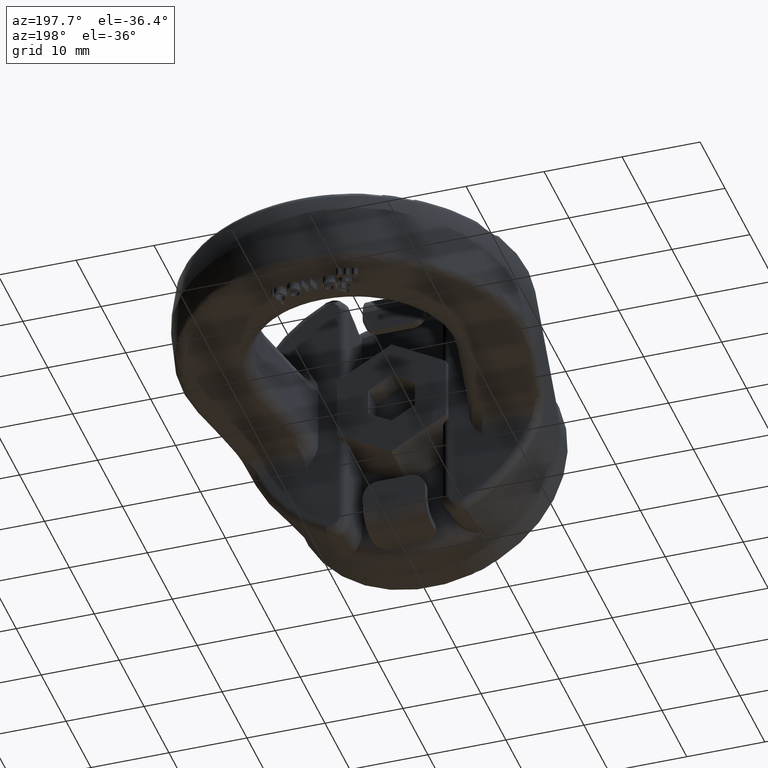
[diagram: clean part render]
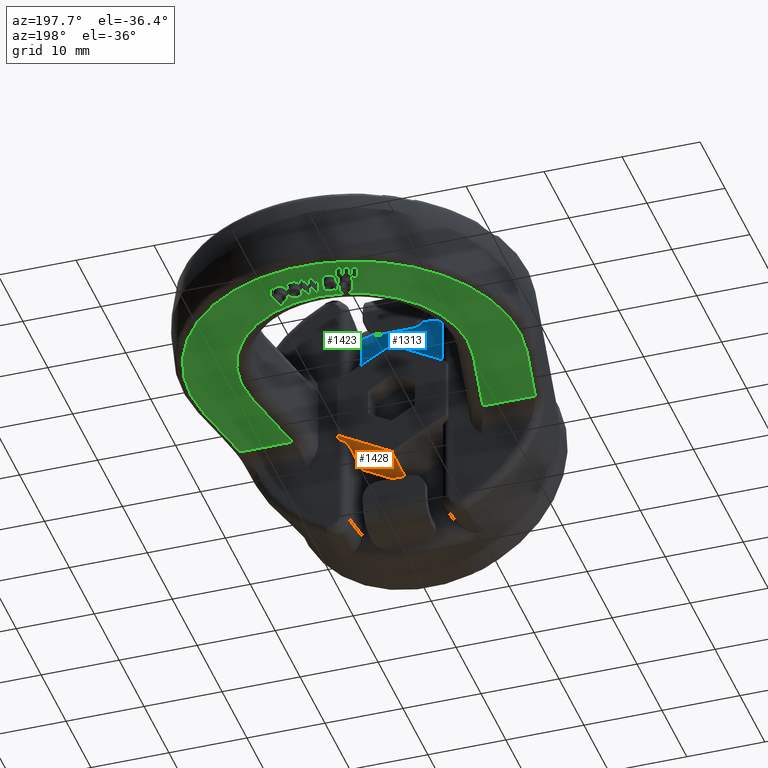
[diagram: same view with three faces highlighted in distinct colors, each labeled with its STEP entity id]
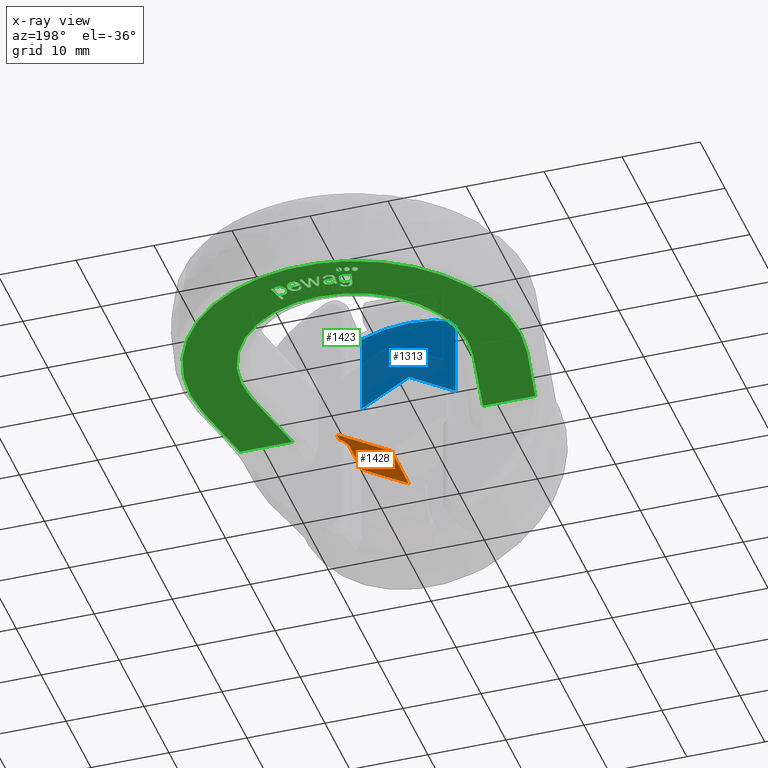
[diagram: x-ray of the same camera — body ghosted, the three highlighted faces saturated]
A machine part, auxiliary view with three faces highlighted in distinct colors.
The next image is the same camera in x-ray (body ghosted, the three faces saturated) — at least one of them is partly hidden behind the body in this view.
Their STEP definitions:

[orange] entity #1428 — the highlighted planar face has unit normal (-0.5, 0, 0.866).
#1053=ELLIPSE('',#5232,1.15470053837925,1.);
#1196=FACE_OUTER_BOUND('',#1959,.T.);
#1428=ADVANCED_FACE('',(#1196),#1610,.F.);
#1610=PLANE('',#5233);
#1959=EDGE_LOOP('',(#3333,#3334,#3335,#3336,#3337,#3338));
#2114=LINE('',#6504,#2390);
#2151=LINE('',#6894,#2427);
#2249=LINE('',#8370,#2553);
#2254=LINE('',#8401,#2558);
#2257=LINE('',#8416,#2561);
#2390=VECTOR('',#5400,1.);
#2427=VECTOR('',#5511,1.);
#2553=VECTOR('',#5817,1.);
#2558=VECTOR('',#5826,1.);
#2561=VECTOR('',#5835,1.);
#3333=ORIENTED_EDGE('',*,*,#4385,.F.);
#3334=ORIENTED_EDGE('',*,*,#4614,.T.);
#3335=ORIENTED_EDGE('',*,*,#4599,.F.);
#3336=ORIENTED_EDGE('',*,*,#4608,.F.);
#3337=ORIENTED_EDGE('',*,*,#4613,.T.);
#3338=ORIENTED_EDGE('',*,*,#4300,.T.);
#3915=VERTEX_POINT('',#6502);
#3917=VERTEX_POINT('',#6505);
#3950=VERTEX_POINT('',#6642);
#4120=VERTEX_POINT('',#8371);
#4121=VERTEX_POINT('',#8372);
#4128=VERTEX_POINT('',#8400);
#4300=EDGE_CURVE('',#3917,#3915,#2114,.T.);
#4385=EDGE_CURVE('',#3950,#3915,#2151,.T.);
#4599=EDGE_CURVE('',#4120,#4121,#2249,.T.);
#4608=EDGE_CURVE('',#4128,#4120,#2254,.T.);
#4613=EDGE_CURVE('',#4128,#3917,#2257,.T.);
#4614=EDGE_CURVE('',#3950,#4121,#1053,.T.);
#5232=AXIS2_PLACEMENT_3D('',#8418,#5838,#5839);
#5233=AXIS2_PLACEMENT_3D('',#8419,#5840,#5841);
#5400=DIRECTION('',(0.866025403784441,0.,0.499999999999995));
#5511=DIRECTION('',(0.,1.,0.));
#5817=DIRECTION('',(0.,1.,0.));
#5826=DIRECTION('',(0.866025403784441,-1.25192883228097E-16,0.499999999999995));
#5835=DIRECTION('',(0.,1.,0.));
#5838=DIRECTION('',(-0.499999999999995,0.,0.866025403784441));
#5839=DIRECTION('',(-0.866025403784441,0.,-0.499999999999995));
#5840=DIRECTION('',(-0.499999999999995,0.,0.866025403784441));
#5841=DIRECTION('',(0.866025403784441,0.,0.499999999999995));
#6502=CARTESIAN_POINT('',(7.00000000000001,16.,-4.04145188432737));
#6504=CARTESIAN_POINT('',(1.80493435426896E-14,16.,-8.0829037686547));
#6505=CARTESIAN_POINT('',(1.80701602244013E-14,16.,-8.0829037686547));
#6642=CARTESIAN_POINT('',(7.00000000000001,15.,-4.04145188432737));
#6894=CARTESIAN_POINT('',(7.00000000000001,1.70000000000001,-4.04145188432737));
#8370=CARTESIAN_POINT('',(6.00000000000001,15.,-4.61880215351699));
#8371=CARTESIAN_POINT('',(6.00000000000001,9.,-4.618802153517));
#8372=CARTESIAN_POINT('',(6.00000000000001,14.,-4.61880215351699));
#8400=CARTESIAN_POINT('',(1.80701602244013E-14,9.,-8.0829037686547));
#8401=CARTESIAN_POINT('',(-2.71706437183233,9.,-9.65160161513763));
#8416=CARTESIAN_POINT('',(1.80701602244013E-14,1.70000000000001,-8.0829037686547));
#8418=CARTESIAN_POINT('',(7.00000000000001,14.,-4.04145188432737));
#8419=CARTESIAN_POINT('',(1.80493435426896E-14,1.70000000000001,-8.0829037686547));

[blue] entity #1313 — the highlighted planar face has unit normal (-0, 1, 0).
#1093=FACE_OUTER_BOUND('',#1825,.T.);
#1313=ADVANCED_FACE('',(#1093),#1552,.T.);
#1552=PLANE('',#5105);
#1673=CIRCLE('',#5104,16.2518933962199);
#1825=EDGE_LOOP('',(#2775,#2776,#2777,#2778,#2779,#2780,#2781));
#2133=LINE('',#6609,#2409);
#2134=LINE('',#6623,#2410);
#2135=LINE('',#6625,#2411);
#2136=LINE('',#6627,#2412);
#2409=VECTOR('',#5427,1.);
#2410=VECTOR('',#5432,1.);
#2411=VECTOR('',#5433,1.);
#2412=VECTOR('',#5434,1.);
#2775=ORIENTED_EDGE('',*,*,#4326,.T.);
#2776=ORIENTED_EDGE('',*,*,#4327,.T.);
#2777=ORIENTED_EDGE('',*,*,#4328,.T.);
#2778=ORIENTED_EDGE('',*,*,#4329,.T.);
#2779=ORIENTED_EDGE('',*,*,#4330,.F.);
#2780=ORIENTED_EDGE('',*,*,#4331,.T.);
#2781=ORIENTED_EDGE('',*,*,#4332,.T.);
#3939=VERTEX_POINT('',#6597);
#3942=VERTEX_POINT('',#6608);
#3943=VERTEX_POINT('',#6615);
#3944=VERTEX_POINT('',#6617);
#3945=VERTEX_POINT('',#6622);
#3946=VERTEX_POINT('',#6624);
#3947=VERTEX_POINT('',#6626);
#4326=EDGE_CURVE('',#3939,#3942,#2133,.T.);
#4327=EDGE_CURVE('',#3942,#3943,#4856,.T.);
#4328=EDGE_CURVE('',#3943,#3944,#1673,.T.);
#4329=EDGE_CURVE('',#3944,#3945,#4857,.T.);
#4330=EDGE_CURVE('',#3946,#3945,#2134,.T.);
#4331=EDGE_CURVE('',#3946,#3947,#2135,.T.);
#4332=EDGE_CURVE('',#3947,#3939,#2136,.T.);
#4856=B_SPLINE_CURVE_WITH_KNOTS('',3,(#6611,#6612,#6613,#6614),
 .UNSPECIFIED.,.F.,.F.,(4,4),(0.,1.),.UNSPECIFIED.);
#4857=B_SPLINE_CURVE_WITH_KNOTS('',3,(#6618,#6619,#6620,#6621),
 .UNSPECIFIED.,.F.,.F.,(4,4),(0.,1.),.UNSPECIFIED.);
#5104=AXIS2_PLACEMENT_3D('',#6616,#5430,#5431);
#5105=AXIS2_PLACEMENT_3D('',#6628,#5435,#5436);
#5427=DIRECTION('',(0.,0.,1.));
#5430=DIRECTION('',(-1.44560289664734E-16,1.,0.));
#5431=DIRECTION('',(-1.,-1.06739776940716E-16,0.));
#5432=DIRECTION('',(0.,0.,1.));
#5433=DIRECTION('',(-0.866025403784443,-1.25192883228097E-16,0.499999999999993));
#5434=DIRECTION('',(-0.866025403784443,-1.25192883228097E-16,-0.499999999999993));
#5435=DIRECTION('',(-1.44560289664734E-16,1.,0.));
#5436=DIRECTION('',(-1.,-1.43982048506075E-16,0.));
#6597=CARTESIAN_POINT('',(-6.,9.,4.61880215351701));
#6608=CARTESIAN_POINT('',(-6.,9.,14.5989302787139));
#6609=CARTESIAN_POINT('',(-6.,9.,24.75));
#6611=CARTESIAN_POINT('',(-6.,9.,14.5989302787139));
#6612=CARTESIAN_POINT('',(-5.99999999999979,9.,14.7608213090874));
#6613=CARTESIAN_POINT('',(-6.01894561099704,9.,14.9237895497863));
#6614=CARTESIAN_POINT('',(-6.0561581598875,9.,15.0813456728678));
#6615=CARTESIAN_POINT('',(-6.0561581598875,9.,15.0813456728678));
#6616=CARTESIAN_POINT('',(-1.52752616624701E-13,9.,0.));
#6617=CARTESIAN_POINT('',(6.0561581598875,9.,15.0813456728676));
#6618=CARTESIAN_POINT('',(6.0561581598875,9.,15.0813456728676));
#6619=CARTESIAN_POINT('',(6.01894561099704,9.,14.9237895497861));
#6620=CARTESIAN_POINT('',(5.99999999999979,9.,14.7608213090873));
#6621=CARTESIAN_POINT('',(6.,9.,14.5989302787138));
#6622=CARTESIAN_POINT('',(6.,9.,14.5989302787138));
#6623=CARTESIAN_POINT('',(6.,9.,24.75));
#6624=CARTESIAN_POINT('',(6.,9.,4.61880215351701));
#6625=CARTESIAN_POINT('',(-11.7170643718324,9.,14.8477540378442));
#6626=CARTESIAN_POINT('',(8.67361737988404E-16,9.,8.0829037686547));
#6627=CARTESIAN_POINT('',(2.71706437183235,9.,9.65160161513762));
#6628=CARTESIAN_POINT('',(-6.,9.,24.75));

[green] entity #1423 — the highlighted planar face has unit normal (-0, -0, 1).
#1423=ADVANCED_FACE('',(#1789,#1790,#1791,#1792,#1793,#1794,#1795,#1796,
#1797),#1605,.F.);
#1605=PLANE('',#5225);
#1709=CIRCLE('',#5220,0.375);
#1710=CIRCLE('',#5221,0.375);
#1711=CIRCLE('',#5222,0.375);
#1712=CIRCLE('',#5223,14.5);
#1713=CIRCLE('',#5224,21.1246301742776);
#1789=FACE_BOUND('',#1946,.T.);
#1790=FACE_BOUND('',#1947,.T.);
#1791=FACE_BOUND('',#1948,.T.);
#1792=FACE_BOUND('',#1949,.T.);
#1793=FACE_BOUND('',#1950,.T.);
#1794=FACE_BOUND('',#1951,.T.);
#1795=FACE_BOUND('',#1952,.T.);
#1796=FACE_BOUND('',#1953,.T.);
#1797=FACE_BOUND('',#1954,.T.);
#1946=EDGE_LOOP('',(#3259,#3260,#3261,#3262,#3263,#3264,#3265));
#1947=EDGE_LOOP('',(#3266,#3267,#3268,#3269,#3270,#3271,#3272,#3273,#3274,
#3275,#3276,#3277,#3278,#3279,#3280));
#1948=EDGE_LOOP('',(#3281,#3282,#3283,#3284,#3285));
#1949=EDGE_LOOP('',(#3286));
#1950=EDGE_LOOP('',(#3287));
#1951=EDGE_LOOP('',(#3288));
#1952=EDGE_LOOP('',(#3289,#3290,#3291,#3292,#3293,#3294,#3295,#3296));
#1953=EDGE_LOOP('',(#3297,#3298,#3299,#3300,#3301,#3302));
#1954=EDGE_LOOP('',(#3303,#3304,#3305,#3306,#3307,#3308,#3309,#3310,#3311));
#2222=LINE('',#8111,#2526);
#2223=LINE('',#8143,#2527);
#2224=LINE('',#8145,#2528);
#2225=LINE('',#8146,#2529);
#2226=LINE('',#8149,#2530);
#2227=LINE('',#8151,#2531);
#2228=LINE('',#8153,#2532);
#2229=LINE('',#8167,#2533);
#2230=LINE('',#8169,#2534);
#2231=LINE('',#8185,#2535);
#2232=LINE('',#8187,#2536);
#2233=LINE('',#8189,#2537);
#2234=LINE('',#8191,#2538);
#2235=LINE('',#8193,#2539);
#2236=LINE('',#8209,#2540);
#2237=LINE('',#8232,#2541);
#2238=LINE('',#8242,#2542);
#2239=LINE('',#8244,#2543);
#2240=LINE('',#8258,#2544);
#2241=LINE('',#8260,#2545);
#2242=LINE('',#8261,#2546);
#2243=LINE('',#8264,#2547);
#2244=LINE('',#8266,#2548);
#2245=LINE('',#8268,#2549);
#2246=LINE('',#8270,#2550);
#2247=LINE('',#8294,#2551);
#2248=LINE('',#8339,#2552);
#2526=VECTOR('',#5778,1.);
#2527=VECTOR('',#5779,1.);
#2528=VECTOR('',#5780,1.);
#2529=VECTOR('',#5781,1.);
#2530=VECTOR('',#5782,1.);
#2531=VECTOR('',#5783,1.);
#2532=VECTOR('',#5784,1.);
#2533=VECTOR('',#5785,1.);
#2534=VECTOR('',#5786,1.);
#2535=VECTOR('',#5787,1.);
#2536=VECTOR('',#5788,1.);
#2537=VECTOR('',#5789,1.);
#2538=VECTOR('',#5790,1.);
#2539=VECTOR('',#5791,1.);
#2540=VECTOR('',#5792,1.);
#2541=VECTOR('',#5793,1.);
#2542=VECTOR('',#5802,1.);
#2543=VECTOR('',#5803,1.);
#2544=VECTOR('',#5806,1.);
#2545=VECTOR('',#5807,1.);
#2546=VECTOR('',#5808,1.);
#2547=VECTOR('',#5809,1.);
#2548=VECTOR('',#5810,1.);
#2549=VECTOR('',#5811,1.);
#2550=VECTOR('',#5812,1.);
#2551=VECTOR('',#5813,1.);
#2552=VECTOR('',#5814,1.);
#3259=ORIENTED_EDGE('',*,*,#4546,.T.);
#3260=ORIENTED_EDGE('',*,*,#4547,.T.);
#3261=ORIENTED_EDGE('',*,*,#4548,.T.);
#3262=ORIENTED_EDGE('',*,*,#4549,.T.);
#3263=ORIENTED_EDGE('',*,*,#4550,.T.);
#3264=ORIENTED_EDGE('',*,*,#4551,.T.);
#3265=ORIENTED_EDGE('',*,*,#4552,.T.);
#3266=ORIENTED_EDGE('',*,*,#4553,.T.);
#3267=ORIENTED_EDGE('',*,*,#4554,.T.);
#3268=ORIENTED_EDGE('',*,*,#4555,.T.);
#3269=ORIENTED_EDGE('',*,*,#4556,.T.);
#3270=ORIENTED_EDGE('',*,*,#4557,.T.);
#3271=ORIENTED_EDGE('',*,*,#4558,.T.);
#3272=ORIENTED_EDGE('',*,*,#4559,.T.);
#3273=ORIENTED_EDGE('',*,*,#4560,.T.);
#3274=ORIENTED_EDGE('',*,*,#4561,.T.);
#3275=ORIENTED_EDGE('',*,*,#4562,.T.);
#3276=ORIENTED_EDGE('',*,*,#4563,.T.);
#3277=ORIENTED_EDGE('',*,*,#4564,.T.);
#3278=ORIENTED_EDGE('',*,*,#4565,.T.);
#3279=ORIENTED_EDGE('',*,*,#4566,.T.);
#3280=ORIENTED_EDGE('',*,*,#4567,.T.);
#3281=ORIENTED_EDGE('',*,*,#4568,.T.);
#3282=ORIENTED_EDGE('',*,*,#4569,.T.);
#3283=ORIENTED_EDGE('',*,*,#4570,.T.);
#3284=ORIENTED_EDGE('',*,*,#4571,.T.);
#3285=ORIENTED_EDGE('',*,*,#4572,.T.);
#3286=ORIENTED_EDGE('',*,*,#4573,.F.);
#3287=ORIENTED_EDGE('',*,*,#4574,.F.);
#3288=ORIENTED_EDGE('',*,*,#4575,.F.);
#3289=ORIENTED_EDGE('',*,*,#4576,.T.);
#3290=ORIENTED_EDGE('',*,*,#4577,.T.);
#3291=ORIENTED_EDGE('',*,*,#4578,.T.);
#3292=ORIENTED_EDGE('',*,*,#4579,.T.);
#3293=ORIENTED_EDGE('',*,*,#4580,.T.);
#3294=ORIENTED_EDGE('',*,*,#4581,.T.);
#3295=ORIENTED_EDGE('',*,*,#4582,.T.);
#3296=ORIENTED_EDGE('',*,*,#4583,.T.);
#3297=ORIENTED_EDGE('',*,*,#4584,.T.);
#3298=ORIENTED_EDGE('',*,*,#4585,.T.);
#3299=ORIENTED_EDGE('',*,*,#4586,.T.);
#3300=ORIENTED_EDGE('',*,*,#4587,.T.);
#3301=ORIENTED_EDGE('',*,*,#4588,.T.);
#3302=ORIENTED_EDGE('',*,*,#4589,.T.);
#3303=ORIENTED_EDGE('',*,*,#4590,.T.);
#3304=ORIENTED_EDGE('',*,*,#4591,.T.);
#3305=ORIENTED_EDGE('',*,*,#4592,.T.);
#3306=ORIENTED_EDGE('',*,*,#4593,.T.);
#3307=ORIENTED_EDGE('',*,*,#4594,.T.);
#3308=ORIENTED_EDGE('',*,*,#4595,.T.);
#3309=ORIENTED_EDGE('',*,*,#4596,.T.);
#3310=ORIENTED_EDGE('',*,*,#4597,.T.);
#3311=ORIENTED_EDGE('',*,*,#4598,.T.);
#4067=VERTEX_POINT('',#8104);
#4068=VERTEX_POINT('',#8105);
#4069=VERTEX_POINT('',#8110);
#4070=VERTEX_POINT('',#8112);
#4071=VERTEX_POINT('',#8125);
#4072=VERTEX_POINT('',#8142);
#4073=VERTEX_POINT('',#8144);
#4074=VERTEX_POINT('',#8147);
#4075=VERTEX_POINT('',#8148);
#4076=VERTEX_POINT('',#8150);
#4077=VERTEX_POINT('',#8152);
#4078=VERTEX_POINT('',#8154);
#4079=VERTEX_POINT('',#8161);
#4080=VERTEX_POINT('',#8166);
#4081=VERTEX_POINT('',#8168);
#4082=VERTEX_POINT('',#8170);
#4083=VERTEX_POINT('',#8177);
#4084=VERTEX_POINT('',#8184);
#4085=VERTEX_POINT('',#8186);
#4086=VERTEX_POINT('',#8188);
#4087=VERTEX_POINT('',#8190);
#4088=VERTEX_POINT('',#8192);
#4089=VERTEX_POINT('',#8202);
#4090=VERTEX_POINT('',#8203);
#4091=VERTEX_POINT('',#8208);
#4092=VERTEX_POINT('',#8210);
#4093=VERTEX_POINT('',#8231);
#4094=VERTEX_POINT('',#8234);
#4095=VERTEX_POINT('',#8236);
#4096=VERTEX_POINT('',#8238);
#4097=VERTEX_POINT('',#8240);
#4098=VERTEX_POINT('',#8241);
#4099=VERTEX_POINT('',#8243);
#4100=VERTEX_POINT('',#8245);
#4101=VERTEX_POINT('',#8250);
#4102=VERTEX_POINT('',#8252);
#4103=VERTEX_POINT('',#8257);
#4104=VERTEX_POINT('',#8259);
#4105=VERTEX_POINT('',#8262);
#4106=VERTEX_POINT('',#8263);
#4107=VERTEX_POINT('',#8265);
#4108=VERTEX_POINT('',#8267);
#4109=VERTEX_POINT('',#8269);
#4110=VERTEX_POINT('',#8271);
#4111=VERTEX_POINT('',#8295);
#4112=VERTEX_POINT('',#8296);
#4113=VERTEX_POINT('',#8301);
#4114=VERTEX_POINT('',#8318);
#4115=VERTEX_POINT('',#8325);
#4116=VERTEX_POINT('',#8338);
#4117=VERTEX_POINT('',#8340);
#4118=VERTEX_POINT('',#8345);
#4119=VERTEX_POINT('',#8358);
#4546=EDGE_CURVE('',#4067,#4068,#4971,.T.);
#4547=EDGE_CURVE('',#4068,#4069,#4972,.T.);
#4548=EDGE_CURVE('',#4069,#4070,#2222,.T.);
#4549=EDGE_CURVE('',#4070,#4071,#4973,.T.);
#4550=EDGE_CURVE('',#4071,#4072,#4974,.T.);
#4551=EDGE_CURVE('',#4072,#4073,#2223,.T.);
#4552=EDGE_CURVE('',#4073,#4067,#2224,.T.);
#4553=EDGE_CURVE('',#4074,#4075,#2225,.T.);
#4554=EDGE_CURVE('',#4075,#4076,#2226,.T.);
#4555=EDGE_CURVE('',#4076,#4077,#2227,.T.);
#4556=EDGE_CURVE('',#4077,#4078,#2228,.T.);
#4557=EDGE_CURVE('',#4078,#4079,#4975,.T.);
#4558=EDGE_CURVE('',#4079,#4080,#4976,.T.);
#4559=EDGE_CURVE('',#4080,#4081,#2229,.T.);
#4560=EDGE_CURVE('',#4081,#4082,#2230,.T.);
#4561=EDGE_CURVE('',#4082,#4083,#4977,.T.);
#4562=EDGE_CURVE('',#4083,#4084,#4978,.T.);
#4563=EDGE_CURVE('',#4084,#4085,#2231,.T.);
#4564=EDGE_CURVE('',#4085,#4086,#2232,.T.);
#4565=EDGE_CURVE('',#4086,#4087,#2233,.T.);
#4566=EDGE_CURVE('',#4087,#4088,#2234,.T.);
#4567=EDGE_CURVE('',#4088,#4074,#2235,.T.);
#4568=EDGE_CURVE('',#4089,#4090,#4979,.T.);
#4569=EDGE_CURVE('',#4090,#4091,#4980,.T.);
#4570=EDGE_CURVE('',#4091,#4092,#2236,.T.);
#4571=EDGE_CURVE('',#4092,#4093,#4981,.T.);
#4572=EDGE_CURVE('',#4093,#4089,#2237,.T.);
#4573=EDGE_CURVE('',#4094,#4094,#1709,.T.);
#4574=EDGE_CURVE('',#4095,#4095,#1710,.T.);
#4575=EDGE_CURVE('',#4096,#4096,#1711,.T.);
#4576=EDGE_CURVE('',#4097,#4098,#1712,.T.);
#4577=EDGE_CURVE('',#4098,#4099,#2238,.T.);
#4578=EDGE_CURVE('',#4099,#4100,#2239,.T.);
#4579=EDGE_CURVE('',#4100,#4101,#4982,.T.);
#4580=EDGE_CURVE('',#4101,#4102,#1713,.T.);
#4581=EDGE_CURVE('',#4102,#4103,#4983,.T.);
#4582=EDGE_CURVE('',#4103,#4104,#2240,.T.);
#4583=EDGE_CURVE('',#4104,#4097,#2241,.T.);
#4584=EDGE_CURVE('',#4105,#4106,#2242,.T.);
#4585=EDGE_CURVE('',#4106,#4107,#2243,.T.);
#4586=EDGE_CURVE('',#4107,#4108,#2244,.T.);
#4587=EDGE_CURVE('',#4108,#4109,#2245,.T.);
#4588=EDGE_CURVE('',#4109,#4110,#2246,.T.);
#4589=EDGE_CURVE('',#4110,#4105,#4984,.T.);
#4590=EDGE_CURVE('',#4111,#4112,#2247,.T.);
#4591=EDGE_CURVE('',#4112,#4113,#4985,.T.);
#4592=EDGE_CURVE('',#4113,#4114,#4986,.T.);
#4593=EDGE_CURVE('',#4114,#4115,#4987,.T.);
#4594=EDGE_CURVE('',#4115,#4116,#4988,.T.);
#4595=EDGE_CURVE('',#4116,#4117,#2248,.T.);
#4596=EDGE_CURVE('',#4117,#4118,#4989,.T.);
#4597=EDGE_CURVE('',#4118,#4119,#4990,.T.);
#4598=EDGE_CURVE('',#4119,#4111,#4991,.T.);
#4971=B_SPLINE_CURVE_WITH_KNOTS('',3,(#8092,#8093,#8094,#8095,#8096,#8097,
#8098,#8099,#8100,#8101,#8102,#8103),.UNSPECIFIED.,.F.,.F.,(4,2,2,2,2,4),
(0.,0.305645754892085,0.470829306249207,0.636012857606331,0.802206343843953,
1.),.UNSPECIFIED.);
#4972=B_SPLINE_CURVE_WITH_KNOTS('',3,(#8106,#8107,#8108,#8109),
 .UNSPECIFIED.,.F.,.F.,(4,4),(0.,1.),.UNSPECIFIED.);
#4973=B_SPLINE_CURVE_WITH_KNOTS('',3,(#8113,#8114,#8115,#8116,#8117,#8118,
#8119,#8120,#8121,#8122,#8123,#8124),.UNSPECIFIED.,.F.,.F.,(4,2,2,2,2,4),
(0.,0.163304651309287,0.382303784248528,0.619375661168189,0.856447538087857,
1.),.UNSPECIFIED.);
#4974=B_SPLINE_CURVE_WITH_KNOTS('',3,(#8126,#8127,#8128,#8129,#8130,#8131,
#8132,#8133,#8134,#8135,#8136,#8137,#8138,#8139,#8140,#8141),
 .UNSPECIFIED.,.F.,.F.,(4,2,2,2,2,2,2,4),(0.,0.139503666745457,0.312880428291726,
0.486257189837989,0.605370995480464,0.723854105689081,0.842337215897699,
1.),.UNSPECIFIED.);
#4975=B_SPLINE_CURVE_WITH_KNOTS('',3,(#8155,#8156,#8157,#8158,#8159,#8160),
 .UNSPECIFIED.,.F.,.F.,(4,2,4),(0.,0.728909607654965,1.),.UNSPECIFIED.);
#4976=B_SPLINE_CURVE_WITH_KNOTS('',3,(#8162,#8163,#8164,#8165),
 .UNSPECIFIED.,.F.,.F.,(4,4),(0.,1.),.UNSPECIFIED.);
#4977=B_SPLINE_CURVE_WITH_KNOTS('',3,(#8171,#8172,#8173,#8174,#8175,#8176),
 .UNSPECIFIED.,.F.,.F.,(4,2,4),(0.,0.752082276025117,1.),.UNSPECIFIED.);
#4978=B_SPLINE_CURVE_WITH_KNOTS('',3,(#8178,#8179,#8180,#8181,#8182,#8183),
 .UNSPECIFIED.,.F.,.F.,(4,2,4),(0.,0.250451922487237,1.),.UNSPECIFIED.);
#4979=B_SPLINE_CURVE_WITH_KNOTS('',3,(#8194,#8195,#8196,#8197,#8198,#8199,
#8200,#8201),.UNSPECIFIED.,.F.,.F.,(4,2,2,4),(0.,0.363477968613222,0.728087675912446,
1.),.UNSPECIFIED.);
#4980=B_SPLINE_CURVE_WITH_KNOTS('',3,(#8204,#8205,#8206,#8207),
 .UNSPECIFIED.,.F.,.F.,(4,4),(0.,1.),.UNSPECIFIED.);
#4981=B_SPLINE_CURVE_WITH_KNOTS('',3,(#8211,#8212,#8213,#8214,#8215,#8216,
#8217,#8218,#8219,#8220,#8221,#8222,#8223,#8224,#8225,#8226,#8227,#8228,
#8229,#8230),.UNSPECIFIED.,.F.,.F.,(4,2,2,2,2,2,2,2,2,4),(0.,0.102921203122043,
0.206156274885329,0.336063021724235,0.465707475917734,0.599570296299741,
0.733433116681748,0.86284525505617,0.992257393430592,1.),.UNSPECIFIED.);
#4982=B_SPLINE_CURVE_WITH_KNOTS('',3,(#8246,#8247,#8248,#8249),
 .UNSPECIFIED.,.F.,.F.,(4,4),(0.,1.),.UNSPECIFIED.);
#4983=B_SPLINE_CURVE_WITH_KNOTS('',3,(#8253,#8254,#8255,#8256),
 .UNSPECIFIED.,.F.,.F.,(4,4),(0.,1.),.UNSPECIFIED.);
#4984=B_SPLINE_CURVE_WITH_KNOTS('',3,(#8272,#8273,#8274,#8275,#8276,#8277,
#8278,#8279,#8280,#8281,#8282,#8283,#8284,#8285,#8286,#8287,#8288,#8289,
#8290,#8291,#8292,#8293),.UNSPECIFIED.,.F.,.F.,(4,2,2,2,2,2,2,2,2,2,4),
(0.,0.0830854503763879,0.165678296755074,0.273272220956498,0.380460889370522,
0.487248686046683,0.601946689884046,0.7170552508492,0.831909514623426,0.915821305508706,
1.),.UNSPECIFIED.);
#4985=B_SPLINE_CURVE_WITH_KNOTS('',3,(#8297,#8298,#8299,#8300),
 .UNSPECIFIED.,.F.,.F.,(4,4),(0.,1.),.UNSPECIFIED.);
#4986=B_SPLINE_CURVE_WITH_KNOTS('',3,(#8302,#8303,#8304,#8305,#8306,#8307,
#8308,#8309,#8310,#8311,#8312,#8313,#8314,#8315,#8316,#8317),
 .UNSPECIFIED.,.F.,.F.,(4,2,2,2,2,2,2,4),(0.,0.121639465164567,0.243930904991197,
0.445161792748243,0.646392680505288,0.763565096161288,0.881519242448379,
1.),.UNSPECIFIED.);
#4987=B_SPLINE_CURVE_WITH_KNOTS('',3,(#8319,#8320,#8321,#8322,#8323,#8324),
 .UNSPECIFIED.,.F.,.F.,(4,2,4),(0.,0.3293446934494,1.),.UNSPECIFIED.);
#4988=B_SPLINE_CURVE_WITH_KNOTS('',3,(#8326,#8327,#8328,#8329,#8330,#8331,
#8332,#8333,#8334,#8335,#8336,#8337),.UNSPECIFIED.,.F.,.F.,(4,2,2,2,2,4),
(0.,0.0173977322142877,0.217983350684942,0.490675035316418,0.745337517658208,
1.),.UNSPECIFIED.);
#4989=B_SPLINE_CURVE_WITH_KNOTS('',3,(#8341,#8342,#8343,#8344),
 .UNSPECIFIED.,.F.,.F.,(4,4),(0.,1.),.UNSPECIFIED.);
#4990=B_SPLINE_CURVE_WITH_KNOTS('',3,(#8346,#8347,#8348,#8349,#8350,#8351,
#8352,#8353,#8354,#8355,#8356,#8357),.UNSPECIFIED.,.F.,.F.,(4,2,2,2,2,4),
(0.,0.20173029270749,0.402155128097317,0.60175516992587,0.800199545078051,
1.),.UNSPECIFIED.);
#4991=B_SPLINE_CURVE_WITH_KNOTS('',3,(#8359,#8360,#8361,#8362,#8363,#8364,
#8365,#8366,#8367,#8368),.UNSPECIFIED.,.F.,.F.,(4,2,2,2,4),(0.,0.161403604805123,
0.323059797411184,0.661780038481073,1.),.UNSPECIFIED.);
#5220=AXIS2_PLACEMENT_3D('',#8233,#5794,#5795);
#5221=AXIS2_PLACEMENT_3D('',#8235,#5796,#5797);
#5222=AXIS2_PLACEMENT_3D('',#8237,#5798,#5799);
#5223=AXIS2_PLACEMENT_3D('',#8239,#5800,#5801);
#5224=AXIS2_PLACEMENT_3D('',#8251,#5804,#5805);
#5225=AXIS2_PLACEMENT_3D('',#8369,#5815,#5816);
#5778=DIRECTION('',(-0.926036898244073,-0.377432991523656,-2.21054315143653E-15));
#5779=DIRECTION('',(-0.240441711768674,0.970663578816961,-4.58093910151045E-16));
#5780=DIRECTION('',(-0.970663578816962,-0.240441711768669,-2.30024685584558E-15));
#5781=DIRECTION('',(0.258675883018076,-0.965964175083537,5.0132445598242E-16));
#5782=DIRECTION('',(0.999999995678886,9.29635860585154E-5,2.34292079817326E-15));
#5783=DIRECTION('',(0.297319028478968,0.954778191678215,8.00109200774233E-16));
#5784=DIRECTION('',(-0.999999995678886,-9.29635860306668E-5,-2.34292079817326E-15));
#5785=DIRECTION('',(-0.26668775938768,0.963782983348834,-5.20332052371245E-16));
#5786=DIRECTION('',(-0.999999995678886,-9.29635860223379E-5,-2.34292079817326E-15));
#5787=DIRECTION('',(-0.999999995678886,-9.2963586044615E-5,-2.34292079817326E-15));
#5788=DIRECTION('',(0.303109223404764,-0.952955822001713,6.06838174374211E-16));
#5789=DIRECTION('',(0.999999995678886,9.29635860388954E-5,2.34292079817326E-15));
#5790=DIRECTION('',(0.260553429481473,0.965459429694197,7.15128746564999E-16));
#5791=DIRECTION('',(0.226101851815537,0.974103666251999,6.35348985620359E-16));
#5792=DIRECTION('',(-0.999955648987409,0.009418070830556,-2.34178570941629E-15));
#5793=DIRECTION('',(0.991600377783165,-0.129339440157614,2.3092081539516E-15));
#5794=DIRECTION('',(2.34291072916505E-15,1.0842021724855E-16,-1.));
#5795=DIRECTION('',(0.,1.,0.));
#5796=DIRECTION('',(2.34291072916505E-15,1.0842021724855E-16,-1.));
#5797=DIRECTION('',(0.,1.,0.));
#5798=DIRECTION('',(2.34291072916505E-15,1.0842021724855E-16,-1.));
#5799=DIRECTION('',(0.,1.,0.));
#5800=DIRECTION('',(-2.34291072916505E-15,-1.0842021724855E-16,1.));
#5801=DIRECTION('',(-2.12516407656523E-31,1.,1.19636101791504E-16));
#5802=DIRECTION('',(0.193894894562375,-0.981022308544839,3.47915776982408E-16));
#5803=DIRECTION('',(-1.,0.,-2.34291072916505E-15));
#5804=DIRECTION('',(2.34291072916505E-15,1.0842021724855E-16,-1.));
#5805=DIRECTION('',(-2.18807705905196E-31,1.,1.23177787847554E-16));
#5806=DIRECTION('',(-1.,0.,-2.34291072916505E-15));
#5807=DIRECTION('',(0.193894894562375,0.981022308544839,5.6064108061862E-16));
#5808=DIRECTION('',(-0.240261234879316,-0.97070826668689,-6.6815502616035E-16));
#5809=DIRECTION('',(0.970708266686899,-0.240261234879278,2.24823363762793E-15));
#5810=DIRECTION('',(0.24026123487932,0.970708266686889,6.6815502616036E-16));
#5811=DIRECTION('',(-0.970708266686884,0.240261234879342,-2.24823363762788E-15));
#5812=DIRECTION('',(-0.240261234879316,-0.97070826668689,-6.6815502616035E-16));
#5813=DIRECTION('',(0.991576312927651,0.129523803375304,2.33721778124492E-15));
#5814=DIRECTION('',(0.965560779386228,0.260177595713119,2.29043122113538E-15));
#5815=DIRECTION('',(-2.34291072916505E-15,-1.0842021724855E-16,1.));
#5816=DIRECTION('',(0.,1.,1.0842021724855E-16));
#8092=CARTESIAN_POINT('',(-5.17146461947346,48.2553131167821,-5.00000000000001));
#8093=CARTESIAN_POINT('',(-5.04598467779833,47.7487503895407,-5.00000000000001));
#8094=CARTESIAN_POINT('',(-4.9205047361232,47.2421876622993,-5.00000000000001));
#8095=CARTESIAN_POINT('',(-4.7272102671457,46.4618575787915,-5.00000000000001));
#8096=CARTESIAN_POINT('',(-4.6508081867054,46.275212812134,-5.00000000000001));
#8097=CARTESIAN_POINT('',(-4.48052137067233,46.0749268827251,-5.00000000000001));
#8098=CARTESIAN_POINT('',(-4.36837535363507,46.0065100948053,-5.00000000000001));
#8099=CARTESIAN_POINT('',(-4.08984432270127,45.935395287186,-5.00000000000001));
#8100=CARTESIAN_POINT('',(-3.93016062806058,45.9397978599713,-5.00000000000001));
#8101=CARTESIAN_POINT('',(-3.53727148507616,46.0371198777497,-5.00000000000001));
#8102=CARTESIAN_POINT('',(-3.37651664458398,46.1270150303619,-5.00000000000001));
#8103=CARTESIAN_POINT('',(-3.26850620850113,46.2539197375009,-5.00000000000001));
#8104=CARTESIAN_POINT('',(-5.17146461947346,48.2553131167821,-5.00000000000001));
#8105=CARTESIAN_POINT('',(-3.26850620850113,46.2539197375009,-5.00000000000001));
#8106=CARTESIAN_POINT('',(-3.26850620850113,46.2539197375009,-5.00000000000001));
#8107=CARTESIAN_POINT('',(-3.16049577241828,46.3808244446398,-5.00000000000001));
#8108=CARTESIAN_POINT('',(-3.13254466172379,46.538631444501,-5.00000000000001));
#8109=CARTESIAN_POINT('',(-3.18386744740864,46.7268764156949,-5.00000000000001));
#8110=CARTESIAN_POINT('',(-3.18386744740864,46.7268764156949,-5.00000000000001));
#8111=CARTESIAN_POINT('',(-33.3553237789344,34.4296309782548,-5.00000000000008));
#8112=CARTESIAN_POINT('',(-3.46823969568772,46.6109723209684,-5.00000000000001));
#8113=CARTESIAN_POINT('',(-3.46823969568772,46.6109723209684,-5.00000000000001));
#8114=CARTESIAN_POINT('',(-3.45809761341216,46.5186060394501,-5.00000000000001));
#8115=CARTESIAN_POINT('',(-3.47606064420637,46.4449741571848,-5.00000000000001));
#8116=CARTESIAN_POINT('',(-3.58390831168738,46.3164565960924,-5.00000000000001));
#8117=CARTESIAN_POINT('',(-3.6798033767143,46.2633884287734,-5.00000000000001));
#8118=CARTESIAN_POINT('',(-3.95078318755081,46.1962644004343,-5.00000000000001));
#8119=CARTESIAN_POINT('',(-4.0655621944294,46.1968233257196,-5.00000000000001));
#8120=CARTESIAN_POINT('',(-4.24579445056458,46.2694586919767,-5.00000000000001));
#8121=CARTESIAN_POINT('',(-4.31681193015408,46.3342269151133,-5.00000000000001));
#8122=CARTESIAN_POINT('',(-4.3989077806629,46.483146299924,-5.00000000000001));
#8123=CARTESIAN_POINT('',(-4.4379102061861,46.6092907647548,-5.00000000000001));
#8124=CARTESIAN_POINT('',(-4.48477829624114,46.8039102335949,-5.00000000000001));
#8125=CARTESIAN_POINT('',(-4.48477829624114,46.8039102335949,-5.00000000000001));
#8126=CARTESIAN_POINT('',(-4.48477829624114,46.8039102335949,-5.00000000000001));
#8127=CARTESIAN_POINT('',(-4.31399477568591,46.6828128108937,-5.00000000000001));
#8128=CARTESIAN_POINT('',(-4.13021867681516,46.6472936247769,-5.00000000000001));
#8129=CARTESIAN_POINT('',(-3.68679716817359,46.7571329438774,-5.00000000000001));
#8130=CARTESIAN_POINT('',(-3.51756590918364,46.8912960281985,-5.00000000000001));
#8131=CARTESIAN_POINT('',(-3.33490229639925,47.3068333203724,-5.00000000000001));
#8132=CARTESIAN_POINT('',(-3.31913724304912,47.53278065094,-5.00000000000001));
#8133=CARTESIAN_POINT('',(-3.42108969566016,47.9443628668237,-5.00000000000001));
#8134=CARTESIAN_POINT('',(-3.49033060476869,48.0912721460913,-5.00000000000001));
#8135=CARTESIAN_POINT('',(-3.68404937146539,48.3442539699589,-5.00000000000001));
#8136=CARTESIAN_POINT('',(-3.80069118899902,48.432122388134,-5.00000000000001));
#8137=CARTESIAN_POINT('',(-4.07380275001,48.5278722756582,-5.00000000000001));
#8138=CARTESIAN_POINT('',(-4.22119123604038,48.5328722518796,-5.00000000000001));
#8139=CARTESIAN_POINT('',(-4.59070915990836,48.4413394859625,-5.00000000000001));
#8140=CARTESIAN_POINT('',(-4.74365461768065,48.3145049291172,-5.00000000000001));
#8141=CARTESIAN_POINT('',(-4.83905078673898,48.1123182945235,-5.00000000000001));
#8142=CARTESIAN_POINT('',(-4.83905078673898,48.1123182945235,-5.00000000000001));
#8143=CARTESIAN_POINT('',(-10.6354507309872,71.5123942328926,-5.00000000000002));
#8144=CARTESIAN_POINT('',(-4.89164164464694,48.3246276728526,-5.00000000000001));
#8145=CARTESIAN_POINT('',(-39.2561909136599,39.8122334399602,-5.0000000000001));
#8146=CARTESIAN_POINT('',(-6.61179773777554,73.2799900594643,-5.00000000000002));
#8147=CARTESIAN_POINT('',(0.00808229076548879,48.5596068667461,-5.));
#8148=CARTESIAN_POINT('',(0.38108872589425,47.1667021660599,-5.));
#8149=CARTESIAN_POINT('',(-44.9985276876668,47.1624835141659,-5.00000000000011));
#8150=CARTESIAN_POINT('',(0.707112021160167,47.1667324743547,-5.));
#8151=CARTESIAN_POINT('',(1.16131571515607,48.625313123651,-5.));
#8152=CARTESIAN_POINT('',(1.27113964704365,48.9779898279542,-5.));
#8153=CARTESIAN_POINT('',(-44.9986960637709,48.9736884180829,-5.00000000000011));
#8154=CARTESIAN_POINT('',(0.948370077279399,48.9779598221374,-5.));
#8155=CARTESIAN_POINT('',(0.948370077279399,48.9779598221374,-5.));
#8156=CARTESIAN_POINT('',(0.850573800083456,48.6293961115894,-5.));
#8157=CARTESIAN_POINT('',(0.752777522887513,48.2808324010413,-5.));
#8158=CARTESIAN_POINT('',(0.618609614865871,47.8026335861438,-5.));
#8159=CARTESIAN_POINT('',(0.582121893482495,47.6730310812808,-5.));
#8160=CARTESIAN_POINT('',(0.545692217377958,47.5434122766746,-5.));
#8161=CARTESIAN_POINT('',(0.545692217377958,47.5434122766746,-5.));
#8162=CARTESIAN_POINT('',(0.545692217377958,47.5434122766746,-5.));
#8163=CARTESIAN_POINT('',(0.541135218030474,47.5625983458316,-5.));
#8164=CARTESIAN_POINT('',(0.509237114420671,47.6873075836178,-5.));
#8165=CARTESIAN_POINT('',(0.45064871110372,47.9169005007744,-5.));
#8166=CARTESIAN_POINT('',(0.45064871110372,47.9169005007744,-5.));
#8167=CARTESIAN_POINT('',(-6.65870459154003,73.6093947923569,-5.00000000000002));
#8168=CARTESIAN_POINT('',(0.157064035276714,48.9778862594898,-5.));
#8169=CARTESIAN_POINT('',(-44.998696063771,48.9736884180833,-5.00000000000011));
#8170=CARTESIAN_POINT('',(-0.163753299186545,48.9778564351598,-5.));
#8171=CARTESIAN_POINT('',(-0.163753299186545,48.9778564351598,-5.));
#8172=CARTESIAN_POINT('',(-0.25569271193327,48.6275878030609,-5.));
#8173=CARTESIAN_POINT('',(-0.347632124679996,48.277319170962,-5.));
#8174=CARTESIAN_POINT('',(-0.469878607116254,47.811587371045,-5.));
#8175=CARTESIAN_POINT('',(-0.501153963546192,47.696380533929,-5.));
#8176=CARTESIAN_POINT('',(-0.531945176605927,47.5810455314619,-5.));
#8177=CARTESIAN_POINT('',(-0.531945176605927,47.5810455314619,-5.));
#8178=CARTESIAN_POINT('',(-0.531945176605927,47.5810455314619,-5.));
#8179=CARTESIAN_POINT('',(-0.56709625262276,47.6976535032168,-5.));
#8180=CARTESIAN_POINT('',(-0.602247328639593,47.8142614749716,-5.));
#8181=CARTESIAN_POINT('',(-0.742597922349346,48.2798517191862,-5.));
#8182=CARTESIAN_POINT('',(-0.847870872144299,48.6288118515748,-5.));
#8183=CARTESIAN_POINT('',(-0.953107105888236,48.977783053999,-5.));
#8184=CARTESIAN_POINT('',(-0.953107105888236,48.977783053999,-5.));
#8185=CARTESIAN_POINT('',(-44.9986960637707,48.9736884180823,-5.00000000000011));
#8186=CARTESIAN_POINT('',(-1.25700506774289,48.9777548025545,-5.));
#8187=CARTESIAN_POINT('',(-9.32622283981266,74.3468543255508,-5.00000000000002));
#8188=CARTESIAN_POINT('',(-0.680927277846186,47.1666034372434,-5.));
#8189=CARTESIAN_POINT('',(-44.9985276876671,47.1624835141669,-5.00000000000011));
#8190=CARTESIAN_POINT('',(-0.35620547278094,47.166633624547,-5.));
#8191=CARTESIAN_POINT('',(0.595955534831762,50.6947883881064,-5.));
#8192=CARTESIAN_POINT('',(-0.063471013038612,48.2513372307022,-5.));
#8193=CARTESIAN_POINT('',(0.887625083074874,52.3488985144459,-5.));
#8194=CARTESIAN_POINT('',(2.79335506430457,47.7774374698736,-4.99999999999999));
#8195=CARTESIAN_POINT('',(2.75601442934387,47.5817231862315,-4.99999999999999));
#8196=CARTESIAN_POINT('',(2.67954274562389,47.4381955710878,-4.99999999999999));
#8197=CARTESIAN_POINT('',(2.44797733564573,47.255229275187,-4.99999999999999));
#8198=CARTESIAN_POINT('',(2.31370634319804,47.2195419894557,-4.99999999999999));
#8199=CARTESIAN_POINT('',(2.04785135806974,47.2542187964739,-4.99999999999999));
#8200=CARTESIAN_POINT('',(1.95486456889805,47.2960160254815,-5.));
#8201=CARTESIAN_POINT('',(1.8818148313252,47.3648812572146,-5.));
#8202=CARTESIAN_POINT('',(2.79335506430457,47.7774374698736,-4.99999999999999));
#8203=CARTESIAN_POINT('',(1.8818148313252,47.3648812572146,-5.));
#8204=CARTESIAN_POINT('',(1.8818148313252,47.3648812572146,-5.));
#8205=CARTESIAN_POINT('',(1.80949309184998,47.434296499721,-5.));
#8206=CARTESIAN_POINT('',(1.75777015603375,47.535853167198,-5.));
#8207=CARTESIAN_POINT('',(1.72745674098167,47.6707354481993,-5.));
#8208=CARTESIAN_POINT('',(1.72745674098167,47.6707354481993,-5.));
#8209=CARTESIAN_POINT('',(-45.1402209681494,48.1121581340707,-5.00000000000011));
#8210=CARTESIAN_POINT('',(1.40235245282482,47.6737974392149,-5.));
#8211=CARTESIAN_POINT('',(1.40235245282482,47.6737974392149,-5.));
#8212=CARTESIAN_POINT('',(1.42934098876341,47.4832366892553,-5.));
#8213=CARTESIAN_POINT('',(1.5042946801385,47.3283424725527,-5.));
#8214=CARTESIAN_POINT('',(1.75050722724439,47.0895235087558,-5.));
#8215=CARTESIAN_POINT('',(1.91838548658192,47.0163436242265,-5.));
#8216=CARTESIAN_POINT('',(2.39782785053903,46.9538075377834,-4.99999999999999));
#8217=CARTESIAN_POINT('',(2.61998470605247,47.0067413375197,-4.99999999999999));
#8218=CARTESIAN_POINT('',(2.9755831213652,47.2902486938071,-4.99999999999999));
#8219=CARTESIAN_POINT('',(3.08346921228063,47.5061182776543,-4.99999999999999));
#8220=CARTESIAN_POINT('',(3.16097692232648,48.1003428580986,-4.99999999999999));
#8221=CARTESIAN_POINT('',(3.1122136270243,48.3453411788305,-4.99999999999999));
#8222=CARTESIAN_POINT('',(2.83953707082215,48.7201605250282,-4.99999999999999));
#8223=CARTESIAN_POINT('',(2.64461195006734,48.8307212674074,-4.99999999999999));
#8224=CARTESIAN_POINT('',(2.14839232976718,48.895445696041,-4.99999999999999));
#8225=CARTESIAN_POINT('',(1.93768505986081,48.8397285346116,-5.));
#8226=CARTESIAN_POINT('',(1.58526808872443,48.5528929633262,-5.));
#8227=CARTESIAN_POINT('',(1.47789031718827,48.3334206476195,-5.));
#8228=CARTESIAN_POINT('',(1.43686168945856,48.0188684684302,-5.));
#8229=CARTESIAN_POINT('',(1.43395005122534,47.991514656856,-5.));
#8230=CARTESIAN_POINT('',(1.43052562597695,47.9551981893458,-5.));
#8231=CARTESIAN_POINT('',(1.43052562597695,47.9551981893458,-5.));
#8232=CARTESIAN_POINT('',(-46.1528196281871,54.1617339812733,-5.00000000000011));
#8233=CARTESIAN_POINT('',(-3.98915464365271,49.5876044916334,-5.00000000000001));
#8234=CARTESIAN_POINT('',(-3.98915464365271,49.9626044916334,-5.00000000000001));
#8235=CARTESIAN_POINT('',(-4.93825013449447,49.3643495941197,-5.00000000000001));
#8236=CARTESIAN_POINT('',(-4.93825013449447,49.7393495941197,-5.00000000000001));
#8237=CARTESIAN_POINT('',(-5.87499999999999,49.0939338226208,-5.00000000000002));
#8238=CARTESIAN_POINT('',(-5.87499999999999,49.4689338226208,-5.00000000000002));
#8239=CARTESIAN_POINT('',(1.17145536458252E-14,30.5,-5.));
#8240=CARTESIAN_POINT('',(14.2248234739002,27.6885240288456,-4.99999999999997));
#8241=CARTESIAN_POINT('',(-14.2248234739002,27.6885240288456,-5.00000000000004));
#8242=CARTESIAN_POINT('',(-12.1344599472687,17.1122102108752,-5.00000000000003));
#8243=CARTESIAN_POINT('',(-12.2111049528101,17.5,-5.00000000000003));
#8244=CARTESIAN_POINT('',(-45.,17.5,-5.00000000000011));
#8245=CARTESIAN_POINT('',(-18.9284913075253,17.5,-5.00000000000005));
#8246=CARTESIAN_POINT('',(-18.9284913075253,17.5,-5.00000000000005));
#8247=CARTESIAN_POINT('',(-19.523117995464,20.443540941851,-5.00000000000005));
#8248=CARTESIAN_POINT('',(-20.1166024552258,23.387312755873,-5.00000000000005));
#8249=CARTESIAN_POINT('',(-20.709215457593,26.3312597669089,-5.00000000000005));
#8250=CARTESIAN_POINT('',(-20.709215457593,26.3312597669089,-5.00000000000005));
#8251=CARTESIAN_POINT('',(1.17145536458253E-14,30.5,-5.));
#8252=CARTESIAN_POINT('',(20.709215457593,26.3312597669091,-4.99999999999996));
#8253=CARTESIAN_POINT('',(20.709215457593,26.3312597669091,-4.99999999999996));
#8254=CARTESIAN_POINT('',(20.1166024552258,23.3873127558731,-4.99999999999996));
#8255=CARTESIAN_POINT('',(19.5231179954642,20.443540941851,-4.99999999999996));
#8256=CARTESIAN_POINT('',(18.9284913075255,17.5,-4.99999999999996));
#8257=CARTESIAN_POINT('',(18.9284913075255,17.5,-4.99999999999996));
#8258=CARTESIAN_POINT('',(-45.,17.5,-5.00000000000011));
#8259=CARTESIAN_POINT('',(12.2111049528102,17.5,-4.99999999999998));
#8260=CARTESIAN_POINT('',(14.2248234739002,27.6885240288456,-4.99999999999997));
#8261=CARTESIAN_POINT('',(5.41071753593869,50.5227793334083,-4.99999999999999));
#8262=CARTESIAN_POINT('',(4.47797336315738,46.7542875928342,-4.99999999999999));
#8263=CARTESIAN_POINT('',(4.26623124134636,45.8988028195581,-4.99999999999999));
#8264=CARTESIAN_POINT('',(-46.1444862945926,58.3760234861477,-5.00000000000011));
#8265=CARTESIAN_POINT('',(4.56943939388733,45.8237553849631,-4.99999999999999));
#8266=CARTESIAN_POINT('',(5.71392568847963,50.4477318988132,-4.99999999999999));
#8267=CARTESIAN_POINT('',(5.17132175320065,48.2554925815688,-4.99999999999999));
#8268=CARTESIAN_POINT('',(-45.5426039352787,60.8077606827567,-5.00000000000011));
#8269=CARTESIAN_POINT('',(4.89527599765814,48.3238170168146,-4.99999999999999));
#8270=CARTESIAN_POINT('',(5.43787993293716,50.5160563340592,-4.99999999999999));
#8271=CARTESIAN_POINT('',(4.83872948036753,48.0953566419484,-4.99999999999999));
#8272=CARTESIAN_POINT('',(4.83872948036753,48.0953566419484,-4.99999999999999));
#8273=CARTESIAN_POINT('',(4.79579296237169,48.200858108613,-4.99999999999999));
#8274=CARTESIAN_POINT('',(4.7384811487425,48.2861990742889,-4.99999999999999));
#8275=CARTESIAN_POINT('',(4.59679157689602,48.4158617855785,-4.99999999999999));
#8276=CARTESIAN_POINT('',(4.50272768881033,48.4631434555821,-4.99999999999999));
#8277=CARTESIAN_POINT('',(4.23363045343022,48.5297480537852,-4.99999999999999));
#8278=CARTESIAN_POINT('',(4.08876963418331,48.5240952788376,-4.99999999999999));
#8279=CARTESIAN_POINT('',(3.81745117640939,48.4281629234154,-4.99999999999999));
#8280=CARTESIAN_POINT('',(3.70209123366396,48.3404507451878,-4.99999999999999));
#8281=CARTESIAN_POINT('',(3.51392603065204,48.0884658307994,-4.99999999999999));
#8282=CARTESIAN_POINT('',(3.44514526390558,47.9415360694902,-4.99999999999999));
#8283=CARTESIAN_POINT('',(3.35909621585466,47.5938789773026,-4.99999999999999));
#8284=CARTESIAN_POINT('',(3.35183876296096,47.4237158009459,-4.99999999999999));
#8285=CARTESIAN_POINT('',(3.41234659702628,47.103806616423,-4.99999999999999));
#8286=CARTESIAN_POINT('',(3.48074944915126,46.969487017692,-4.99999999999999));
#8287=CARTESIAN_POINT('',(3.69255452142338,46.7538489142572,-4.99999999999999));
#8288=CARTESIAN_POINT('',(3.8148057389896,46.6832201122207,-4.99999999999999));
#8289=CARTESIAN_POINT('',(4.05421384276674,46.6239639086551,-4.99999999999999));
#8290=CARTESIAN_POINT('',(4.15040069501784,46.6225574303023,-4.99999999999999));
#8291=CARTESIAN_POINT('',(4.33172656983859,46.6661033498071,-4.99999999999999));
#8292=CARTESIAN_POINT('',(4.41034842528417,46.7031641239311,-4.99999999999999));
#8293=CARTESIAN_POINT('',(4.47797336315738,46.7542875928342,-4.99999999999999));
#8294=CARTESIAN_POINT('',(-42.2297274523332,41.7920322980274,-5.0000000000001));
#8295=CARTESIAN_POINT('',(-2.98886145898923,46.9178366813451,-5.00000000000001));
#8296=CARTESIAN_POINT('',(-2.66558448054402,46.9600644587194,-5.00000000000001));
#8297=CARTESIAN_POINT('',(-2.66558448054402,46.9600644587194,-5.00000000000001));
#8298=CARTESIAN_POINT('',(-2.6415221638226,47.0270608843639,-5.00000000000001));
#8299=CARTESIAN_POINT('',(-2.63056565334719,47.1039550673733,-5.00000000000001));
#8300=CARTESIAN_POINT('',(-2.63254927528386,47.1894786829679,-5.00000000000001));
#8301=CARTESIAN_POINT('',(-2.63254927528386,47.1894786829679,-5.00000000000001));
#8302=CARTESIAN_POINT('',(-2.63254927528386,47.1894786829679,-5.00000000000001));
#8303=CARTESIAN_POINT('',(-2.50518401027589,47.1087232446653,-5.00000000000001));
#8304=CARTESIAN_POINT('',(-2.38598041362484,47.0552809426551,-5.00000000000001));
#8305=CARTESIAN_POINT('',(-2.16346750188182,47.0041542854792,-5.00000000000001));
#8306=CARTESIAN_POINT('',(-2.04728265932906,46.9995506975101,-5.00000000000001));
#8307=CARTESIAN_POINT('',(-1.72465094431388,47.0416941879036,-5.00000000000001));
#8308=CARTESIAN_POINT('',(-1.5767285902264,47.1100351179479,-5.));
#8309=CARTESIAN_POINT('',(-1.38639302735533,47.3309723360759,-5.));
#8310=CARTESIAN_POINT('',(-1.34826126112509,47.4610799461126,-5.));
#8311=CARTESIAN_POINT('',(-1.37932510498908,47.6988908423443,-5.));
#8312=CARTESIAN_POINT('',(-1.41049382320533,47.7767322824829,-5.));
#8313=CARTESIAN_POINT('',(-1.51101804763498,47.9111480429502,-5.));
#8314=CARTESIAN_POINT('',(-1.57194453042925,47.9626824306727,-5.));
#8315=CARTESIAN_POINT('',(-1.71532912508573,48.0331592694097,-5.00000000000001));
#8316=CARTESIAN_POINT('',(-1.79360541575033,48.0569199002824,-5.00000000000001));
#8317=CARTESIAN_POINT('',(-1.87918126380516,48.0689610127799,-5.00000000000001));
#8318=CARTESIAN_POINT('',(-1.87918126380516,48.0689610127799,-5.));
#8319=CARTESIAN_POINT('',(-1.87918126380516,48.0689610127799,-5.));
#8320=CARTESIAN_POINT('',(-1.94255221258231,48.0768078093539,-5.));
#8321=CARTESIAN_POINT('',(-2.03616770565392,48.080058955441,-5.00000000000001));
#8322=CARTESIAN_POINT('',(-2.41420719823563,48.0757206697207,-5.00000000000001));
#8323=CARTESIAN_POINT('',(-2.60330182347448,48.0859554273758,-5.00000000000001));
#8324=CARTESIAN_POINT('',(-2.72668659385615,48.1111173028486,-5.00000000000001));
#8325=CARTESIAN_POINT('',(-2.72668659385615,48.1111173028486,-5.00000000000001));
#8326=CARTESIAN_POINT('',(-2.72668659385615,48.1111173028486,-5.00000000000001));
#8327=CARTESIAN_POINT('',(-2.73344435723628,48.1528034466238,-5.00000000000001));
#8328=CARTESIAN_POINT('',(-2.73756877117907,48.179353980021,-5.00000000000001));
#8329=CARTESIAN_POINT('',(-2.75521303449383,48.3144305690806,-5.00000000000001));
#8330=CARTESIAN_POINT('',(-2.73696241125438,48.4058221800101,-5.00000000000001));
#8331=CARTESIAN_POINT('',(-2.61557493687452,48.5434241367597,-5.00000000000001));
#8332=CARTESIAN_POINT('',(-2.50212989029928,48.5925828357891,-5.00000000000001));
#8333=CARTESIAN_POINT('',(-2.20014660504508,48.6320291427974,-5.00000000000001));
#8334=CARTESIAN_POINT('',(-2.08980223589818,48.6212884483999,-5.00000000000001));
#8335=CARTESIAN_POINT('',(-1.93733710213026,48.5392967786376,-5.));
#8336=CARTESIAN_POINT('',(-1.87476412278197,48.4571727155266,-5.));
#8337=CARTESIAN_POINT('',(-1.82456020410929,48.3340889981474,-5.));
#8338=CARTESIAN_POINT('',(-1.82456020410929,48.3340889981474,-5.00000000000001));
#8339=CARTESIAN_POINT('',(-38.3930213647226,38.4804427991532,-5.00000000000009));
#8340=CARTESIAN_POINT('',(-1.52723321811118,48.4142059850933,-5.));
#8341=CARTESIAN_POINT('',(-1.52723321811118,48.4142059850933,-5.));
#8342=CARTESIAN_POINT('',(-1.57162976591358,48.5380482852997,-5.));
#8343=CARTESIAN_POINT('',(-1.63021778656495,48.6348825038167,-5.));
#8344=CARTESIAN_POINT('',(-1.70364254349532,48.7046243536635,-5.));
#8345=CARTESIAN_POINT('',(-1.70364254349532,48.7046243536635,-5.));
#8346=CARTESIAN_POINT('',(-1.70364254349532,48.7046243536635,-5.));
#8347=CARTESIAN_POINT('',(-1.77650487391263,48.7750846528812,-5.));
#8348=CARTESIAN_POINT('',(-1.87600178808915,48.8233613286548,-5.));
#8349=CARTESIAN_POINT('',(-2.12504098458967,48.8769788552898,-5.00000000000001));
#8350=CARTESIAN_POINT('',(-2.26666939636098,48.880042850997,-5.00000000000001));
#8351=CARTESIAN_POINT('',(-2.5796221599257,48.8391636653154,-5.00000000000001));
#8352=CARTESIAN_POINT('',(-2.7036915216195,48.8042527077725,-5.00000000000001));
#8353=CARTESIAN_POINT('',(-2.88986765925829,48.7066184207498,-5.00000000000001));
#8354=CARTESIAN_POINT('',(-2.9555057520125,48.6520378555858,-5.00000000000001));
#8355=CARTESIAN_POINT('',(-3.03314959759416,48.5305795907339,-5.00000000000001));
#8356=CARTESIAN_POINT('',(-3.05611915690957,48.4576551236984,-5.00000000000001));
#8357=CARTESIAN_POINT('',(-3.0632520599103,48.3715856527628,-5.00000000000001));
#8358=CARTESIAN_POINT('',(-3.0632520599103,48.3715856527628,-5.00000000000001));
#8359=CARTESIAN_POINT('',(-3.0632520599103,48.3715856527628,-5.00000000000001));
#8360=CARTESIAN_POINT('',(-3.06678364759919,48.3182357450942,-5.00000000000001));
#8361=CARTESIAN_POINT('',(-3.05976872824475,48.2243395779251,-5.00000000000001));
#8362=CARTESIAN_POINT('',(-3.02445258930959,47.9539750123426,-5.00000000000001));
#8363=CARTESIAN_POINT('',(-3.00678071368919,47.8186870358197,-5.00000000000001));
#8364=CARTESIAN_POINT('',(-2.9520807361829,47.3999284709886,-5.00000000000001));
#8365=CARTESIAN_POINT('',(-2.93517335989748,47.2202518072145,-5.00000000000001));
#8366=CARTESIAN_POINT('',(-2.94271933484699,47.0671625676316,-5.00000000000001));
#8367=CARTESIAN_POINT('',(-2.95909204022024,46.991383438307,-5.00000000000001));
#8368=CARTESIAN_POINT('',(-2.98886145898923,46.9178366813451,-5.00000000000001));
#8369=CARTESIAN_POINT('',(-45.,63.,-5.00000000000011));